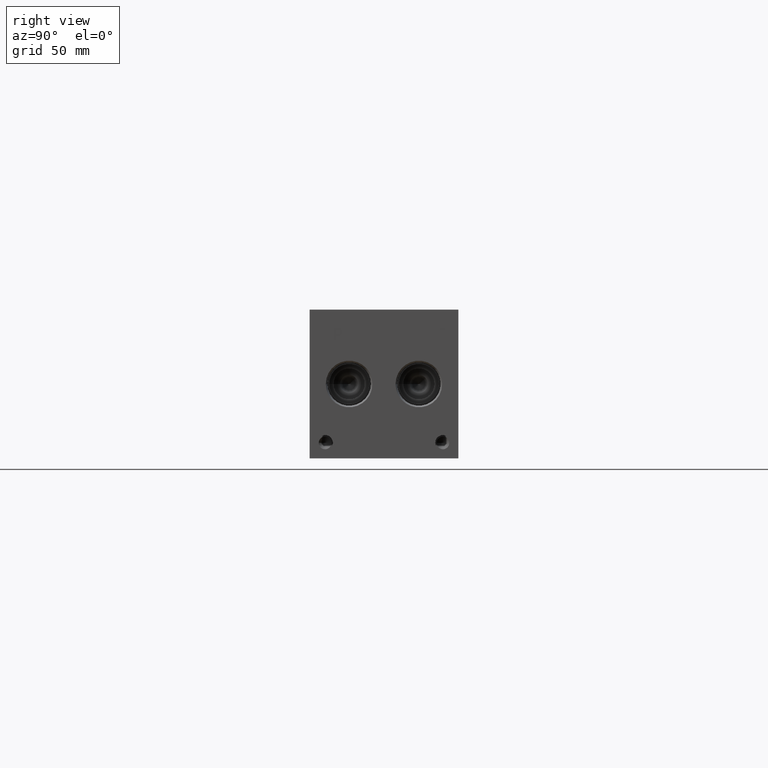
[diagram: clean part render]
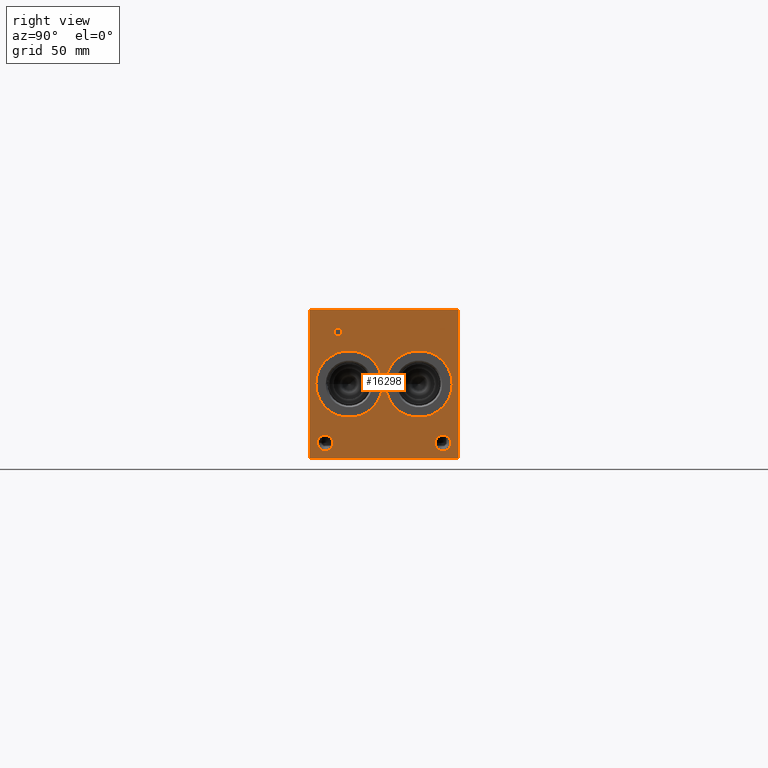
[diagram: same view with one face highlighted and labeled with its STEP entity id]
A machine part, right view. The second image highlights one B-rep face of the part: STEP entity #16298.
In plain terms, the highlighted planar face has unit normal (1, 0, 0).
Its self-contained STEP definition (entity closure, byte-faithful):
#264=CIRCLE('',#17021,17.0688);
#265=CIRCLE('',#17022,17.0688);
#266=CIRCLE('',#17023,17.0688);
#267=CIRCLE('',#17024,17.0688);
#268=CIRCLE('',#17025,3.9624);
#269=CIRCLE('',#17026,3.9624);
#270=CIRCLE('',#17027,3.9624);
#271=CIRCLE('',#17028,3.9624);
#803=FACE_BOUND('',#2930,.T.);
#804=FACE_BOUND('',#2931,.T.);
#805=FACE_BOUND('',#2932,.T.);
#806=FACE_BOUND('',#2933,.T.);
#807=FACE_BOUND('',#2934,.T.);
#808=FACE_BOUND('',#2935,.T.);
#1248=B_SPLINE_CURVE_WITH_KNOTS('',2,(#26851,#26852,#26853,#26854),
 .UNSPECIFIED.,.F.,.F.,(3,1,3),(0.,1.,2.),.UNSPECIFIED.);
#1250=B_SPLINE_CURVE_WITH_KNOTS('',2,(#26872,#26873,#26874,#26875),
 .UNSPECIFIED.,.F.,.F.,(3,1,3),(0.,1.,2.),.UNSPECIFIED.);
#1252=B_SPLINE_CURVE_WITH_KNOTS('',2,(#26921,#26922,#26923,#26924),
 .UNSPECIFIED.,.F.,.F.,(3,1,3),(0.,1.,2.),.UNSPECIFIED.);
#1254=B_SPLINE_CURVE_WITH_KNOTS('',2,(#26939,#26940,#26941,#26942),
 .UNSPECIFIED.,.F.,.F.,(3,1,3),(0.,1.,2.),.UNSPECIFIED.);
#2000=FACE_OUTER_BOUND('',#2929,.T.);
#2929=EDGE_LOOP('',(#13081,#13082,#13083,#13084));
#2930=EDGE_LOOP('',(#13085,#13086));
#2931=EDGE_LOOP('',(#13087,#13088));
#2932=EDGE_LOOP('',(#13089,#13090));
#2933=EDGE_LOOP('',(#13091,#13092));
#2934=EDGE_LOOP('',(#13093,#13094,#13095,#13096,#13097,#13098,#13099,#13100));
#2935=EDGE_LOOP('',(#13101,#13102,#13103,#13104,#13105,#13106,#13107,#13108,
#13109));
#3684=LINE('',#23835,#5124);
#4456=LINE('',#26884,#5896);
#4459=LINE('',#26890,#5899);
#4462=LINE('',#26896,#5902);
#4465=LINE('',#26902,#5905);
#4468=LINE('',#26908,#5908);
#4472=LINE('',#26950,#5912);
#4473=LINE('',#26952,#5913);
#4474=LINE('',#26953,#5914);
#4475=LINE('',#26972,#5915);
#4476=LINE('',#26974,#5916);
#4477=LINE('',#26976,#5917);
#4478=LINE('',#26978,#5918);
#4479=LINE('',#26980,#5919);
#4480=LINE('',#26982,#5920);
#4481=LINE('',#26984,#5921);
#4482=LINE('',#26985,#5922);
#5124=VECTOR('',#18331,10.);
#5896=VECTOR('',#19677,10.);
#5899=VECTOR('',#19682,10.);
#5902=VECTOR('',#19687,10.);
#5905=VECTOR('',#19692,10.);
#5908=VECTOR('',#19697,10.);
#5912=VECTOR('',#19705,10.);
#5913=VECTOR('',#19706,10.);
#5914=VECTOR('',#19707,10.);
#5915=VECTOR('',#19724,10.);
#5916=VECTOR('',#19725,10.);
#5917=VECTOR('',#19726,10.);
#5918=VECTOR('',#19727,10.);
#5919=VECTOR('',#19728,10.);
#5920=VECTOR('',#19729,10.);
#5921=VECTOR('',#19730,10.);
#5922=VECTOR('',#19731,10.);
#6575=VERTEX_POINT('',#23832);
#6576=VERTEX_POINT('',#23834);
#7216=VERTEX_POINT('',#26849);
#7217=VERTEX_POINT('',#26850);
#7220=VERTEX_POINT('',#26871);
#7222=VERTEX_POINT('',#26883);
#7224=VERTEX_POINT('',#26889);
#7226=VERTEX_POINT('',#26895);
#7228=VERTEX_POINT('',#26901);
#7230=VERTEX_POINT('',#26907);
#7232=VERTEX_POINT('',#26920);
#7234=VERTEX_POINT('',#26949);
#7235=VERTEX_POINT('',#26951);
#7236=VERTEX_POINT('',#26954);
#7237=VERTEX_POINT('',#26955);
#7238=VERTEX_POINT('',#26958);
#7239=VERTEX_POINT('',#26959);
#7240=VERTEX_POINT('',#26962);
#7241=VERTEX_POINT('',#26963);
#7242=VERTEX_POINT('',#26966);
#7243=VERTEX_POINT('',#26967);
#7244=VERTEX_POINT('',#26970);
#7245=VERTEX_POINT('',#26971);
#7246=VERTEX_POINT('',#26973);
#7247=VERTEX_POINT('',#26975);
#7248=VERTEX_POINT('',#26977);
#7249=VERTEX_POINT('',#26979);
#7250=VERTEX_POINT('',#26981);
#7251=VERTEX_POINT('',#26983);
#8347=EDGE_CURVE('',#6575,#6576,#3684,.T.);
#9298=EDGE_CURVE('',#7216,#7217,#1248,.T.);
#9302=EDGE_CURVE('',#7220,#7216,#1250,.T.);
#9305=EDGE_CURVE('',#7222,#7220,#4456,.T.);
#9308=EDGE_CURVE('',#7224,#7222,#4459,.T.);
#9311=EDGE_CURVE('',#7226,#7224,#4462,.T.);
#9314=EDGE_CURVE('',#7228,#7226,#4465,.T.);
#9317=EDGE_CURVE('',#7230,#7228,#4468,.T.);
#9320=EDGE_CURVE('',#7232,#7230,#1252,.T.);
#9323=EDGE_CURVE('',#7217,#7232,#1254,.T.);
#9325=EDGE_CURVE('',#6575,#7234,#4472,.T.);
#9326=EDGE_CURVE('',#7234,#7235,#4473,.T.);
#9327=EDGE_CURVE('',#6576,#7235,#4474,.T.);
#9328=EDGE_CURVE('',#7236,#7237,#264,.T.);
#9329=EDGE_CURVE('',#7237,#7236,#265,.T.);
#9330=EDGE_CURVE('',#7238,#7239,#266,.T.);
#9331=EDGE_CURVE('',#7239,#7238,#267,.T.);
#9332=EDGE_CURVE('',#7240,#7241,#268,.T.);
#9333=EDGE_CURVE('',#7241,#7240,#269,.T.);
#9334=EDGE_CURVE('',#7242,#7243,#270,.T.);
#9335=EDGE_CURVE('',#7243,#7242,#271,.T.);
#9336=EDGE_CURVE('',#7244,#7245,#4475,.T.);
#9337=EDGE_CURVE('',#7245,#7246,#4476,.T.);
#9338=EDGE_CURVE('',#7246,#7247,#4477,.T.);
#9339=EDGE_CURVE('',#7247,#7248,#4478,.T.);
#9340=EDGE_CURVE('',#7248,#7249,#4479,.T.);
#9341=EDGE_CURVE('',#7249,#7250,#4480,.T.);
#9342=EDGE_CURVE('',#7250,#7251,#4481,.T.);
#9343=EDGE_CURVE('',#7251,#7244,#4482,.T.);
#13081=ORIENTED_EDGE('',*,*,#9325,.T.);
#13082=ORIENTED_EDGE('',*,*,#9326,.T.);
#13083=ORIENTED_EDGE('',*,*,#9327,.F.);
#13084=ORIENTED_EDGE('',*,*,#8347,.F.);
#13085=ORIENTED_EDGE('',*,*,#9328,.T.);
#13086=ORIENTED_EDGE('',*,*,#9329,.T.);
#13087=ORIENTED_EDGE('',*,*,#9330,.T.);
#13088=ORIENTED_EDGE('',*,*,#9331,.T.);
#13089=ORIENTED_EDGE('',*,*,#9332,.T.);
#13090=ORIENTED_EDGE('',*,*,#9333,.T.);
#13091=ORIENTED_EDGE('',*,*,#9334,.T.);
#13092=ORIENTED_EDGE('',*,*,#9335,.T.);
#13093=ORIENTED_EDGE('',*,*,#9336,.T.);
#13094=ORIENTED_EDGE('',*,*,#9337,.T.);
#13095=ORIENTED_EDGE('',*,*,#9338,.T.);
#13096=ORIENTED_EDGE('',*,*,#9339,.T.);
#13097=ORIENTED_EDGE('',*,*,#9340,.T.);
#13098=ORIENTED_EDGE('',*,*,#9341,.T.);
#13099=ORIENTED_EDGE('',*,*,#9342,.T.);
#13100=ORIENTED_EDGE('',*,*,#9343,.T.);
#13101=ORIENTED_EDGE('',*,*,#9298,.T.);
#13102=ORIENTED_EDGE('',*,*,#9323,.T.);
#13103=ORIENTED_EDGE('',*,*,#9320,.T.);
#13104=ORIENTED_EDGE('',*,*,#9317,.T.);
#13105=ORIENTED_EDGE('',*,*,#9314,.T.);
#13106=ORIENTED_EDGE('',*,*,#9311,.T.);
#13107=ORIENTED_EDGE('',*,*,#9308,.T.);
#13108=ORIENTED_EDGE('',*,*,#9305,.T.);
#13109=ORIENTED_EDGE('',*,*,#9302,.T.);
#15114=PLANE('',#17020);
#16298=ADVANCED_FACE('',(#2000,#803,#804,#805,#806,#807,#808),#15114,.T.);
#17020=AXIS2_PLACEMENT_3D('',#26948,#19703,#19704);
#17021=AXIS2_PLACEMENT_3D('',#26956,#19708,#19709);
#17022=AXIS2_PLACEMENT_3D('',#26957,#19710,#19711);
#17023=AXIS2_PLACEMENT_3D('',#26960,#19712,#19713);
#17024=AXIS2_PLACEMENT_3D('',#26961,#19714,#19715);
#17025=AXIS2_PLACEMENT_3D('',#26964,#19716,#19717);
#17026=AXIS2_PLACEMENT_3D('',#26965,#19718,#19719);
#17027=AXIS2_PLACEMENT_3D('',#26968,#19720,#19721);
#17028=AXIS2_PLACEMENT_3D('',#26969,#19722,#19723);
#18331=DIRECTION('',(0.,0.,1.));
#19677=DIRECTION('',(0.,1.,0.));
#19682=DIRECTION('',(0.,0.,1.));
#19687=DIRECTION('',(0.,-1.,0.));
#19692=DIRECTION('',(0.,0.,-1.));
#19697=DIRECTION('',(0.,-1.,0.));
#19703=DIRECTION('center_axis',(1.,0.,0.));
#19704=DIRECTION('ref_axis',(0.,1.,0.));
#19705=DIRECTION('',(0.,1.,0.));
#19706=DIRECTION('',(0.,0.,1.));
#19707=DIRECTION('',(0.,1.,0.));
#19708=DIRECTION('center_axis',(-1.,0.,0.));
#19709=DIRECTION('ref_axis',(0.,1.,0.));
#19710=DIRECTION('center_axis',(-1.,0.,0.));
#19711=DIRECTION('ref_axis',(0.,1.,0.));
#19712=DIRECTION('center_axis',(-1.,0.,0.));
#19713=DIRECTION('ref_axis',(0.,1.,0.));
#19714=DIRECTION('center_axis',(-1.,0.,0.));
#19715=DIRECTION('ref_axis',(0.,1.,0.));
#19716=DIRECTION('center_axis',(-1.,0.,0.));
#19717=DIRECTION('ref_axis',(0.,1.,0.));
#19718=DIRECTION('center_axis',(-1.,0.,0.));
#19719=DIRECTION('ref_axis',(0.,1.,0.));
#19720=DIRECTION('center_axis',(-1.,0.,0.));
#19721=DIRECTION('ref_axis',(0.,1.,0.));
#19722=DIRECTION('center_axis',(-1.,0.,0.));
#19723=DIRECTION('ref_axis',(0.,1.,0.));
#19724=DIRECTION('',(0.,-1.,0.));
#19725=DIRECTION('',(0.,0.,1.));
#19726=DIRECTION('',(0.,-1.,0.));
#19727=DIRECTION('',(0.,0.,1.));
#19728=DIRECTION('',(0.,1.,0.));
#19729=DIRECTION('',(0.,0.,-1.));
#19730=DIRECTION('',(0.,-1.,0.));
#19731=DIRECTION('',(0.,0.,-1.));
#23832=CARTESIAN_POINT('',(358.775,0.,0.));
#23834=CARTESIAN_POINT('',(358.775,0.,76.2));
#23835=CARTESIAN_POINT('',(358.775,0.,0.));
#26849=CARTESIAN_POINT('',(358.775,15.8068172023594,66.2787681439707));
#26850=CARTESIAN_POINT('',(358.775,16.563259654532,64.760737372604));
#26851=CARTESIAN_POINT('Ctrl Pts',(358.775,15.8068172023594,66.2787681439707));
#26852=CARTESIAN_POINT('Ctrl Pts',(358.775,16.1618820268486,66.0369123939564));
#26853=CARTESIAN_POINT('Ctrl Pts',(358.775,16.563259654532,65.2907616758269));
#26854=CARTESIAN_POINT('Ctrl Pts',(358.775,16.563259654532,64.760737372604));
#26871=CARTESIAN_POINT('',(358.775,14.1447021543883,66.6749999046326));
#26872=CARTESIAN_POINT('Ctrl Pts',(358.775,14.1447021543883,66.6749999046326));
#26873=CARTESIAN_POINT('Ctrl Pts',(358.775,14.7107475267624,66.6749999046326));
#26874=CARTESIAN_POINT('Ctrl Pts',(358.775,15.503211048086,66.4897486918556));
#26875=CARTESIAN_POINT('Ctrl Pts',(358.775,15.8068172023594,66.2787681439707));
#26883=CARTESIAN_POINT('',(358.775,12.5494833776978,66.6749999046326));
#26884=CARTESIAN_POINT('',(358.775,6.27474168884889,66.6749999046326));
#26889=CARTESIAN_POINT('',(358.775,12.5494833776978,60.325));
#26890=CARTESIAN_POINT('',(358.775,12.5494833776978,30.1625));
#26895=CARTESIAN_POINT('',(358.775,13.3934055692373,60.325));
#26896=CARTESIAN_POINT('',(358.775,6.69670278461864,60.325));
#26901=CARTESIAN_POINT('',(358.775,13.3934055692373,62.6920988299279));
#26902=CARTESIAN_POINT('',(358.775,13.3934055692373,31.3460494149639));
#26907=CARTESIAN_POINT('',(358.775,14.1086810852372,62.6920988299279));
#26908=CARTESIAN_POINT('',(358.775,7.05434054261861,62.6920988299279));
#26920=CARTESIAN_POINT('',(358.775,16.0075060162011,63.3507698086904));
#26921=CARTESIAN_POINT('Ctrl Pts',(358.775,16.0075060162011,63.3507698086904));
#26922=CARTESIAN_POINT('Ctrl Pts',(358.775,15.6781705268198,63.0265801863307));
#26923=CARTESIAN_POINT('Ctrl Pts',(358.775,14.7879355320861,62.6920988299279));
#26924=CARTESIAN_POINT('Ctrl Pts',(358.775,14.1086810852372,62.6920988299279));
#26939=CARTESIAN_POINT('Ctrl Pts',(358.775,16.563259654532,64.760737372604));
#26940=CARTESIAN_POINT('Ctrl Pts',(358.775,16.563259654532,64.3490680108774));
#26941=CARTESIAN_POINT('Ctrl Pts',(358.775,16.2699452343018,63.6080631597695));
#26942=CARTESIAN_POINT('Ctrl Pts',(358.775,16.0075060162011,63.3507698086904));
#26948=CARTESIAN_POINT('Origin',(358.775,0.,0.));
#26949=CARTESIAN_POINT('',(358.775,76.2,0.));
#26950=CARTESIAN_POINT('',(358.775,0.,0.));
#26951=CARTESIAN_POINT('',(358.775,76.2,76.2));
#26952=CARTESIAN_POINT('',(358.775,76.2,0.));
#26953=CARTESIAN_POINT('',(358.775,0.,76.2));
#26954=CARTESIAN_POINT('',(358.775,37.3126,38.1));
#26955=CARTESIAN_POINT('',(358.775,3.175,38.1));
#26956=CARTESIAN_POINT('Origin',(358.775,20.2438,38.1));
#26957=CARTESIAN_POINT('Origin',(358.775,20.2438,38.1));
#26958=CARTESIAN_POINT('',(358.775,73.025,38.1));
#26959=CARTESIAN_POINT('',(358.775,38.8874,38.1));
#26960=CARTESIAN_POINT('Origin',(358.775,55.9562,38.1));
#26961=CARTESIAN_POINT('Origin',(358.775,55.9562,38.1));
#26962=CARTESIAN_POINT('',(358.775,72.2376,7.9248));
#26963=CARTESIAN_POINT('',(358.775,64.3128,7.9248));
#26964=CARTESIAN_POINT('Origin',(358.775,68.2752,7.9248));
#26965=CARTESIAN_POINT('Origin',(358.775,68.2752,7.9248));
#26966=CARTESIAN_POINT('',(358.775,11.8872,7.9248));
#26967=CARTESIAN_POINT('',(358.775,3.9624,7.9248));
#26968=CARTESIAN_POINT('Origin',(358.775,7.9248,7.9248));
#26969=CARTESIAN_POINT('Origin',(358.775,7.9248,7.9248));
#26970=CARTESIAN_POINT('',(358.775,69.644165271453,60.325));
#26971=CARTESIAN_POINT('',(358.775,68.8002430799135,60.325));
#26972=CARTESIAN_POINT('',(358.775,34.8220826357265,60.325));
#26973=CARTESIAN_POINT('',(358.775,68.8002430799135,65.9237033194816));
#26974=CARTESIAN_POINT('',(358.775,68.8002430799135,30.1625));
#26975=CARTESIAN_POINT('',(358.775,66.6698541329784,65.9237033194816));
#26976=CARTESIAN_POINT('',(358.775,34.4001215399567,65.9237033194816));
#26977=CARTESIAN_POINT('',(358.775,66.6698541329784,66.6749999046326));
#26978=CARTESIAN_POINT('',(358.775,66.6698541329784,32.9618516597408));
#26979=CARTESIAN_POINT('',(358.775,71.7745542183881,66.6749999046326));
#26980=CARTESIAN_POINT('',(358.775,33.3349270664892,66.6749999046326));
#26981=CARTESIAN_POINT('',(358.775,71.7745542183881,65.9237033194816));
#26982=CARTESIAN_POINT('',(358.775,71.7745542183881,33.3374999523163));
#26983=CARTESIAN_POINT('',(358.775,69.644165271453,65.9237033194816));
#26984=CARTESIAN_POINT('',(358.775,35.887277109194,65.9237033194816));
#26985=CARTESIAN_POINT('',(358.775,69.644165271453,32.9618516597408));